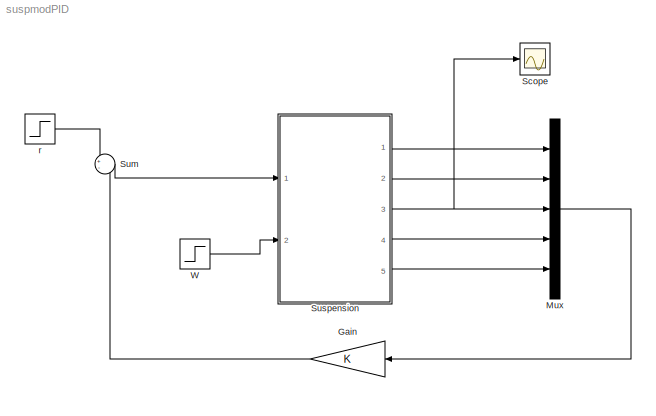
MODEL suspmodPID
KIND model
BLOCK [Gain] Gain
  Gain = K
  Multiplication = Matrix(K*u)
  OutDataTypeStr = Inherit: Inherit via internal rule
  ParamDataTypeStr = Inherit: Inherit via internal rule
  SID = 48
  SaturateOnIntegerOverflow = off
BLOCK [Mux] Mux
  DisplayOption = bar
  Inputs = 5
  Ports = [5, 1]
  SID = 47
BLOCK [Scope] Scope
  Ports = [1]
  SID = 53
  ScopeSpecificationString = Simulink.scopes.TimeScopeBlockCfg('CurrentConfiguration', extmgr.ConfigurationSet(extmgr.Configuration('Core','General UI',true),extmgr.Configuration('Core','Source UI',true),extmgr.Configuration('Sources','WiredSimulink',true),extmgr.Configuration('Visuals','Time Domain',true,'SerializedDisplays',{struct('MinYLimReal','-0.00527','MaxYLimReal','0.00299','YLabelReal','','MinYLimMag','0.00000','MaxY...<+1359ch>
BLOCK [Sum] Sum
  IconShape = round
  InputSameDT = off
  Inputs = +-
  OutDataTypeStr = Inherit: Inherit via internal rule
  Ports = [2, 1]
  SID = 49
  SaturateOnIntegerOverflow = off
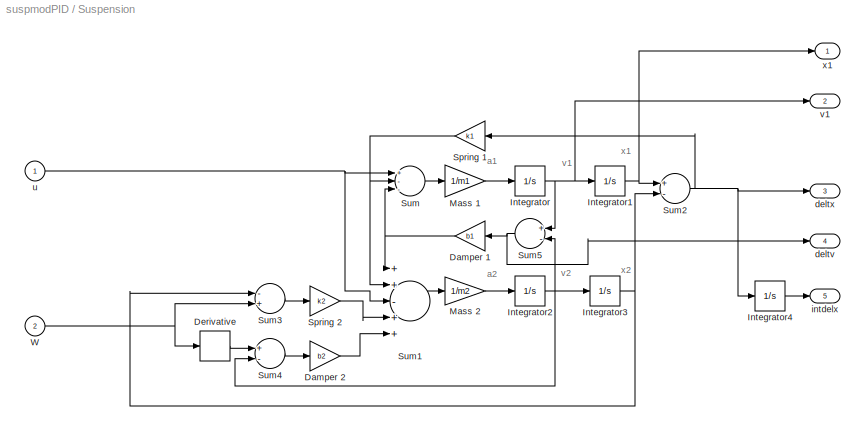
BLOCK [SubSystem] Suspension
  Ports = [2, 5]
  RequestExecContextInheritance = off
  SID = 39
  Variant = off
BLOCK [Gain] Suspension/Damper 1
  Gain = b1
  SID = 2
BLOCK [Gain] Suspension/Damper 2
  Gain = b2
  SID = 3
BLOCK [Derivative] Suspension/Derivative
  SID = 4
BLOCK [Integrator] Suspension/Integrator
  Ports = [1, 1]
  SID = 5
BLOCK [Integrator] Suspension/Integrator1
  Ports = [1, 1]
  SID = 6
BLOCK [Integrator] Suspension/Integrator2
  Ports = [1, 1]
  SID = 7
BLOCK [Integrator] Suspension/Integrator3
  Ports = [1, 1]
  SID = 8
BLOCK [Integrator] Suspension/Integrator4
  Ports = [1, 1]
  SID = 52
BLOCK [Gain] Suspension/Mass 1
  Gain = 1/m1
  SID = 9
BLOCK [Gain] Suspension/Mass 2
  Gain = 1/m2
  SID = 10
BLOCK [Gain] Suspension/Spring 1
  Gain = k1
  SID = 11
BLOCK [Gain] Suspension/Spring 2
  Gain = k2
  SID = 12
BLOCK [Sum] Suspension/Sum
  Inputs = +--
  Ports = [3, 1]
  SID = 13
BLOCK [Sum] Suspension/Sum1
  Inputs = ++-++
  Ports = [5, 1]
  SID = 14
BLOCK [Sum] Suspension/Sum2
  Inputs = +-
  Ports = [2, 1]
  SID = 15
BLOCK [Sum] Suspension/Sum3
  Inputs = -+
  Ports = [2, 1]
  SID = 16
BLOCK [Sum] Suspension/Sum4
  Inputs = +-
  Ports = [2, 1]
  SID = 17
BLOCK [Sum] Suspension/Sum5
  Inputs = +-
  Ports = [2, 1]
  SID = 18
BLOCK [Inport] Suspension/W
  IconDisplay = Port number
  Port = 2
  SID = 41
BLOCK [Outport] Suspension/deltv
  IconDisplay = Port number
  Port = 4
  SID = 44
BLOCK [Outport] Suspension/deltx
  IconDisplay = Port number
  Port = 3
  SID = 46
BLOCK [Outport] Suspension/intdelx
  IconDisplay = Port number
  Port = 5
  SID = 45
BLOCK [Inport] Suspension/u
  IconDisplay = Port number
  SID = 40
BLOCK [Outport] Suspension/v1
  IconDisplay = Port number
  Port = 2
  SID = 43
BLOCK [Outport] Suspension/x1
  IconDisplay = Port number
  InitialOutput = 0
  SID = 42
BLOCK [Step] W
  After = 0.1
  SID = 51
  SampleTime = 0
  Time = 0
BLOCK [Step] r
  After = 0
  SID = 50
  SampleTime = 0
ANNOTATION Suspension: a1
ANNOTATION Suspension: a2
ANNOTATION Suspension: v1
ANNOTATION Suspension: v2
ANNOTATION Suspension: x1
ANNOTATION Suspension: x2
LINE Gain:1 -> Sum:2
LINE Mux:1 -> Gain:1
LINE Sum:1 -> Suspension:1
NET Suspension/Damper 1:1 -> Suspension/Sum1:1, Suspension/Sum:3
LINE Suspension/Damper 2:1 -> Suspension/Sum1:5
LINE Suspension/Derivative:1 -> Suspension/Sum4:1
NET Suspension/Integrator1:1 -> Suspension/Sum2:1, Suspension/x1:1
NET Suspension/Integrator2:1 -> Suspension/Integrator3:1, Suspension/Sum4:2, Suspension/Sum5:2
NET Suspension/Integrator3:1 -> Suspension/Sum2:2, Suspension/Sum3:1
LINE Suspension/Integrator4:1 -> Suspension/intdelx:1
NET Suspension/Integrator:1 -> Suspension/Integrator1:1, Suspension/Sum5:1, Suspension/v1:1
LINE Suspension/Mass 1:1 -> Suspension/Integrator:1
LINE Suspension/Mass 2:1 -> Suspension/Integrator2:1
NET Suspension/Spring 1:1 -> Suspension/Sum1:2, Suspension/Sum:2
LINE Suspension/Spring 2:1 -> Suspension/Sum1:4
LINE Suspension/Sum1:1 -> Suspension/Mass 2:1
NET Suspension/Sum2:1 -> Suspension/Integrator4:1, Suspension/Spring 1:1, Suspension/deltx:1
LINE Suspension/Sum3:1 -> Suspension/Spring 2:1
LINE Suspension/Sum4:1 -> Suspension/Damper 2:1
NET Suspension/Sum5:1 -> Suspension/Damper 1:1, Suspension/deltv:1
LINE Suspension/Sum:1 -> Suspension/Mass 1:1
NET Suspension/W:1 -> Suspension/Derivative:1, Suspension/Sum3:2
NET Suspension/u:1 -> Suspension/Sum1:3, Suspension/Sum:1
LINE Suspension:1 -> Mux:1
LINE Suspension:2 -> Mux:2
NET Suspension:3 -> Mux:3, Scope:1
LINE Suspension:4 -> Mux:4
LINE Suspension:5 -> Mux:5
LINE W:1 -> Suspension:2
LINE r:1 -> Sum:1
note: NET lines group one-source signal fan-out (src -> all destinations, sorted); 1:1 wires keep LINE
